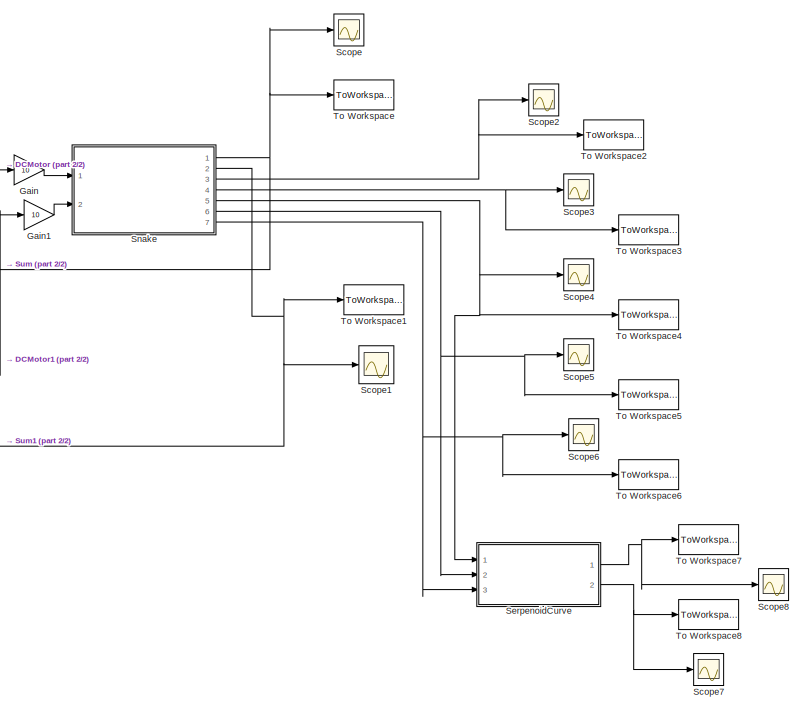
[diagram: root canvas - part 1/2, right side, full height]
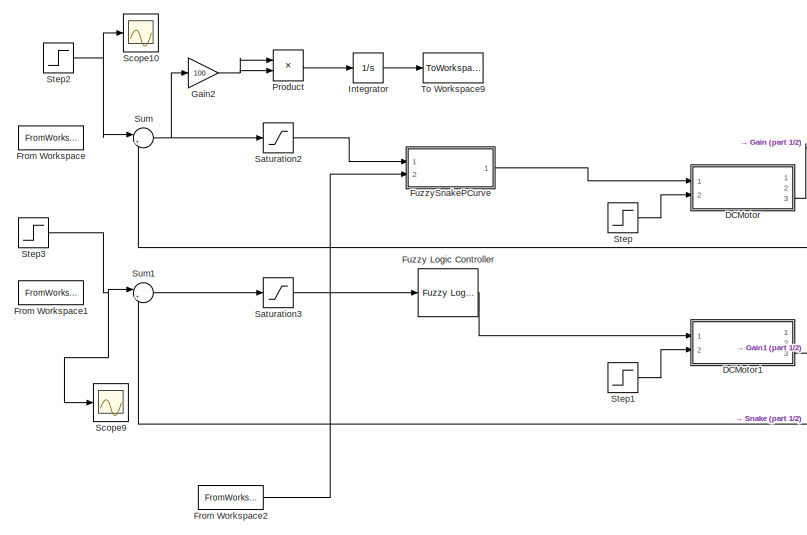
[diagram: root canvas - part 2/2, middle left region]
MODEL slx_288eced03c60
KIND model
CONFIG AbsTol = auto
CONFIG FixedStep = tpaso
CONFIG MaxStep = auto
CONFIG MinStep = auto
CONFIG RelTol = 1e-3
CONFIG SampleTimeConstraint = Unconstrained
CONFIG Solver = FixedStepAuto
CONFIG SolverMode = Auto
CONFIG SolverName = FixedStepAuto
CONFIG StartTime = 0
CONFIG StopTime = tmax
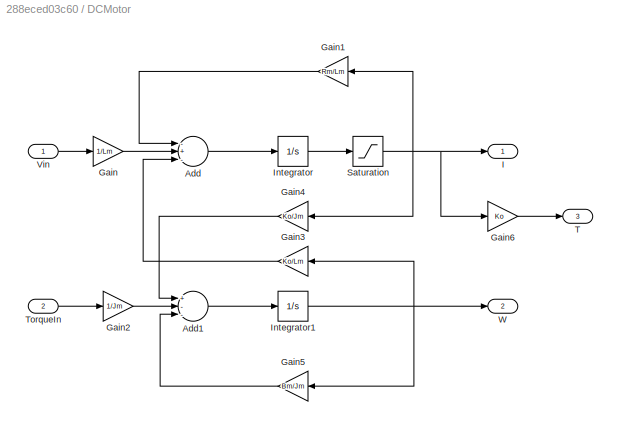
BLOCK [SubSystem] DCMotor
  Ports = [2, 3]
  RequestExecContextInheritance = off
  Variant = off
BLOCK [Sum] DCMotor/Add
  InputSameDT = off
  Inputs = -+-
  OutDataTypeStr = Inherit: Inherit via internal rule
  Ports = [3, 1]
  SaturateOnIntegerOverflow = off
BLOCK [Sum] DCMotor/Add1
  InputSameDT = off
  Inputs = +--
  OutDataTypeStr = Inherit: Inherit via internal rule
  Ports = [3, 1]
  SaturateOnIntegerOverflow = off
BLOCK [Gain] DCMotor/Gain
  Gain = 1/Lm
  OutDataTypeStr = Inherit: Inherit via internal rule
  ParamDataTypeStr = Inherit: Inherit via internal rule
  SaturateOnIntegerOverflow = off
BLOCK [Gain] DCMotor/Gain1
  Gain = Rm/Lm
  OutDataTypeStr = Inherit: Inherit via internal rule
  ParamDataTypeStr = Inherit: Inherit via internal rule
  SaturateOnIntegerOverflow = off
BLOCK [Gain] DCMotor/Gain2
  Gain = 1/Jm
  OutDataTypeStr = Inherit: Inherit via internal rule
  ParamDataTypeStr = Inherit: Inherit via internal rule
  SaturateOnIntegerOverflow = off
BLOCK [Gain] DCMotor/Gain3
  Gain = Ko/Lm
  OutDataTypeStr = Inherit: Inherit via internal rule
  ParamDataTypeStr = Inherit: Inherit via internal rule
  SaturateOnIntegerOverflow = off
BLOCK [Gain] DCMotor/Gain4
  Gain = Ko/Jm
  OutDataTypeStr = Inherit: Inherit via internal rule
  ParamDataTypeStr = Inherit: Inherit via internal rule
  SaturateOnIntegerOverflow = off
BLOCK [Gain] DCMotor/Gain5
  Gain = Bm/Jm
  OutDataTypeStr = Inherit: Inherit via internal rule
  ParamDataTypeStr = Inherit: Inherit via internal rule
  SaturateOnIntegerOverflow = off
BLOCK [Gain] DCMotor/Gain6
  Gain = Ko
  OutDataTypeStr = Inherit: Inherit via internal rule
  ParamDataTypeStr = Inherit: Inherit via internal rule
  SaturateOnIntegerOverflow = off
BLOCK [Outport] DCMotor/I
  IconDisplay = Port number
BLOCK [Integrator] DCMotor/Integrator
  Ports = [1, 1]
BLOCK [Integrator] DCMotor/Integrator1
  Ports = [1, 1]
BLOCK [Saturate] DCMotor/Saturation
  InputPortMap = u0
  LowerLimit = -3.5
  Ports = [1, 1]
  UpperLimit = 3.5
BLOCK [Outport] DCMotor/T
  IconDisplay = Port number
  Port = 3
BLOCK [Inport] DCMotor/TorqueIn
  IconDisplay = Port number
  Port = 2
BLOCK [Inport] DCMotor/Vin
  IconDisplay = Port number
BLOCK [Outport] DCMotor/W
  IconDisplay = Port number
  Port = 2
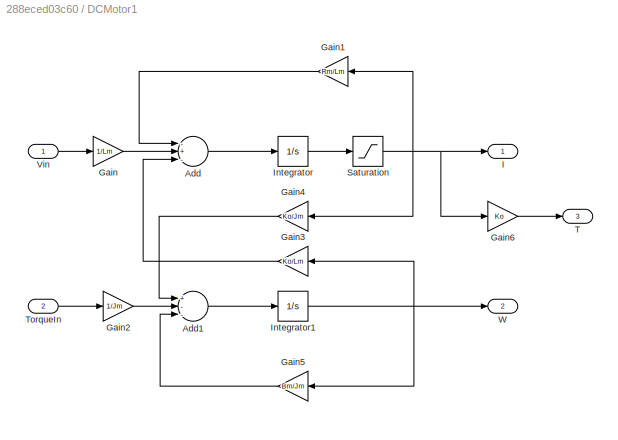
BLOCK [SubSystem] DCMotor1
  Ports = [2, 3]
  RequestExecContextInheritance = off
  Variant = off
BLOCK [Sum] DCMotor1/Add
  InputSameDT = off
  Inputs = -+-
  OutDataTypeStr = Inherit: Inherit via internal rule
  Ports = [3, 1]
  SaturateOnIntegerOverflow = off
BLOCK [Sum] DCMotor1/Add1
  InputSameDT = off
  Inputs = +--
  OutDataTypeStr = Inherit: Inherit via internal rule
  Ports = [3, 1]
  SaturateOnIntegerOverflow = off
BLOCK [Gain] DCMotor1/Gain
  Gain = 1/Lm
  OutDataTypeStr = Inherit: Inherit via internal rule
  ParamDataTypeStr = Inherit: Inherit via internal rule
  SaturateOnIntegerOverflow = off
BLOCK [Gain] DCMotor1/Gain1
  Gain = Rm/Lm
  OutDataTypeStr = Inherit: Inherit via internal rule
  ParamDataTypeStr = Inherit: Inherit via internal rule
  SaturateOnIntegerOverflow = off
BLOCK [Gain] DCMotor1/Gain2
  Gain = 1/Jm
  OutDataTypeStr = Inherit: Inherit via internal rule
  ParamDataTypeStr = Inherit: Inherit via internal rule
  SaturateOnIntegerOverflow = off
BLOCK [Gain] DCMotor1/Gain3
  Gain = Ko/Lm
  OutDataTypeStr = Inherit: Inherit via internal rule
  ParamDataTypeStr = Inherit: Inherit via internal rule
  SaturateOnIntegerOverflow = off
BLOCK [Gain] DCMotor1/Gain4
  Gain = Ko/Jm
  OutDataTypeStr = Inherit: Inherit via internal rule
  ParamDataTypeStr = Inherit: Inherit via internal rule
  SaturateOnIntegerOverflow = off
BLOCK [Gain] DCMotor1/Gain5
  Gain = Bm/Jm
  OutDataTypeStr = Inherit: Inherit via internal rule
  ParamDataTypeStr = Inherit: Inherit via internal rule
  SaturateOnIntegerOverflow = off
BLOCK [Gain] DCMotor1/Gain6
  Gain = Ko
  OutDataTypeStr = Inherit: Inherit via internal rule
  ParamDataTypeStr = Inherit: Inherit via internal rule
  SaturateOnIntegerOverflow = off
BLOCK [Outport] DCMotor1/I
  IconDisplay = Port number
BLOCK [Integrator] DCMotor1/Integrator
  Ports = [1, 1]
BLOCK [Integrator] DCMotor1/Integrator1
  Ports = [1, 1]
BLOCK [Saturate] DCMotor1/Saturation
  InputPortMap = u0
  LowerLimit = -3.5
  Ports = [1, 1]
  UpperLimit = 3.5
BLOCK [Outport] DCMotor1/T
  IconDisplay = Port number
  Port = 3
BLOCK [Inport] DCMotor1/TorqueIn
  IconDisplay = Port number
  Port = 2
BLOCK [Inport] DCMotor1/Vin
  IconDisplay = Port number
BLOCK [Outport] DCMotor1/W
  IconDisplay = Port number
  Port = 2
BLOCK [FromWorkspace] From Workspace
  SampleTime = tpaso
  VariableName = [t', O1Ref']
  ZeroCross = on
BLOCK [FromWorkspace] From Workspace1
  SampleTime = tpaso
  VariableName = [t', O2Ref']
  ZeroCross = on
BLOCK [FromWorkspace] From Workspace2
  SampleTime = tpaso
  VariableName = ConCur
  ZeroCross = on
BLOCK [Reference] Fuzzy Logic Controller  REF=fuzblock/Fuzzy Logic   (lib defined in mdl_858b3b3e7478)
Controller
  Ports = [1, 1]
  SourceBlock = fuzblock/Fuzzy Logic \nController
  SourceType = FIS
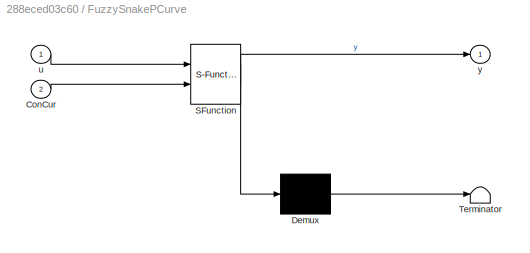
BLOCK [SubSystem] FuzzySnakePCurve
  ErrorFcn = Stateflow.Translate.translate
  PermitHierarchicalResolution = ExplicitOnly
  Ports = [2, 1]
  RequestExecContextInheritance = off
  SFBlockType = MATLAB Function
  TreatAsAtomicUnit = on
  Variant = off
BLOCK [Demux] FuzzySnakePCurve/ Demux 
  Outputs = 1
  Ports = [1, 1]
BLOCK [S-Function] FuzzySnakePCurve/ SFunction 
  EnableBusSupport = on
  FunctionName = sf_sfun
  PortCounts = [2 2]
  Ports = [2, 2]
  SFunctionDeploymentMode = off
  Tag = Stateflow S-Function SnakeRobotPMatlab_1_2_PairedWithFuzzy_2 2
BLOCK [Terminator] FuzzySnakePCurve/ Terminator 
BLOCK [Inport] FuzzySnakePCurve/ConCur
  IconDisplay = Port number
  Port = 2
BLOCK [Inport] FuzzySnakePCurve/u
  IconDisplay = Port number
BLOCK [Outport] FuzzySnakePCurve/y
  IconDisplay = Port number
BLOCK [Gain] Gain
  Gain = 10
  OutDataTypeStr = Inherit: Inherit via internal rule
  ParamDataTypeStr = Inherit: Inherit via internal rule
  SaturateOnIntegerOverflow = off
BLOCK [Gain] Gain1
  Gain = 10
  OutDataTypeStr = Inherit: Inherit via internal rule
  ParamDataTypeStr = Inherit: Inherit via internal rule
  SaturateOnIntegerOverflow = off
BLOCK [Gain] Gain2
  Gain = 100
  OutDataTypeStr = Inherit: Inherit via internal rule
  ParamDataTypeStr = Inherit: Inherit via internal rule
  SaturateOnIntegerOverflow = off
BLOCK [Integrator] Integrator
  Ports = [1, 1]
BLOCK [Product] Product
  InputSameDT = off
  OutDataTypeStr = Inherit: Inherit via internal rule
  Ports = [2, 1]
  RndMeth = Floor
  SaturateOnIntegerOverflow = off
BLOCK [Saturate] Saturation2
  InputPortMap = u0
  LowerLimit = -0.1
  Ports = [1, 1]
  UpperLimit = 0.1
BLOCK [Saturate] Saturation3
  InputPortMap = u0
  LowerLimit = -0.1
  Ports = [1, 1]
  UpperLimit = 0.1
BLOCK [Scope] Scope
  Ports = [1]
  ScopeSpecificationString = Simulink.scopes.TimeScopeBlockCfg('CurrentConfiguration', extmgr.ConfigurationSet(extmgr.Configuration('Core','General UI',true),extmgr.Configuration('Core','Source UI',true),extmgr.Configuration('Sources','WiredSimulink',true),extmgr.Configuration('Visuals','Time Domain',true,'SerializedDisplays',{struct('MinYLimReal','-0.10373','MaxYLimReal','0.26319','YLabelReal','','MinYLimMag','0.00000','MaxY...<+1405ch>
BLOCK [Scope] Scope1
  Ports = [1]
  ScopeSpecificationString = Simulink.scopes.TimeScopeBlockCfg('CurrentConfiguration', extmgr.ConfigurationSet(extmgr.Configuration('Core','General UI',true),extmgr.Configuration('Core','Source UI',true),extmgr.Configuration('Sources','WiredSimulink',true,'DataLoggingVariableName','ScopeData1'),extmgr.Configuration('Visuals','Time Domain',true,'SerializedDisplays',{struct('MinYLimReal','-0.02112','MaxYLimReal','0.19011','YLab...<+1395ch>
BLOCK [Scope] Scope10
  Ports = [1]
  ScopeSpecificationString = Simulink.scopes.TimeScopeBlockCfg('CurrentConfiguration', extmgr.ConfigurationSet(extmgr.Configuration('Core','General UI',true),extmgr.Configuration('Core','Source UI',true),extmgr.Configuration('Sources','WiredSimulink',true,'DataLoggingVariableName','ScopeData2'),extmgr.Configuration('Visuals','Time Domain',true,'SerializedDisplays',{struct('MinYLimReal','0.09','MaxYLimReal','0.11','YLabelReal'...<+1367ch>
BLOCK [Scope] Scope2
  Ports = [1]
  ScopeSpecificationString = Simulink.scopes.TimeScopeBlockCfg('CurrentConfiguration', extmgr.ConfigurationSet(extmgr.Configuration('Core','General UI',true),extmgr.Configuration('Core','Source UI',true),extmgr.Configuration('Sources','WiredSimulink',true,'DataLoggingVariableName','ScopeData1'),extmgr.Configuration('Visuals','Time Domain',true,'SerializedDisplays',{struct('MinYLimReal','-0.05773','MaxYLimReal','0.51957','YLab...<+1366ch>
BLOCK [Scope] Scope3
  Ports = [1]
  ScopeSpecificationString = Simulink.scopes.TimeScopeBlockCfg('CurrentConfiguration', extmgr.ConfigurationSet(extmgr.Configuration('Core','General UI',true),extmgr.Configuration('Core','Source UI',true),extmgr.Configuration('Sources','WiredSimulink',true,'DataLoggingVariableName','ScopeData2'),extmgr.Configuration('Visuals','Time Domain',true,'SerializedDisplays',{struct('MinYLimReal','-0.00069','MaxYLimReal','0.0062','YLabe...<+1393ch>
BLOCK [Scope] Scope4
  Ports = [1]
  ScopeSpecificationString = Simulink.scopes.TimeScopeBlockCfg('CurrentConfiguration', extmgr.ConfigurationSet(extmgr.Configuration('Core','General UI',true),extmgr.Configuration('Core','Source UI',true),extmgr.Configuration('Sources','WiredSimulink',true,'DataLoggingVariableName','ScopeData3'),extmgr.Configuration('Visuals','Time Domain',true,'SerializedDisplays',{struct('MinYLimReal','-0.01517','MaxYLimReal','0.13653','YLab...<+1366ch>
BLOCK [Scope] Scope5
  Ports = [1]
  ScopeSpecificationString = Simulink.scopes.TimeScopeBlockCfg('CurrentConfiguration', extmgr.ConfigurationSet(extmgr.Configuration('Core','General UI',true),extmgr.Configuration('Core','Source UI',true),extmgr.Configuration('Sources','WiredSimulink',true,'DataLoggingVariableName','ScopeData4'),extmgr.Configuration('Visuals','Time Domain',true,'SerializedDisplays',{struct('MinYLimReal','-0.02984','MaxYLimReal','0.26859','YLab...<+1399ch>
BLOCK [Scope] Scope6
  Ports = [1]
  ScopeSpecificationString = Simulink.scopes.TimeScopeBlockCfg('CurrentConfiguration', extmgr.ConfigurationSet(extmgr.Configuration('Core','General UI',true),extmgr.Configuration('Core','Source UI',true),extmgr.Configuration('Sources','WiredSimulink',true,'DataLoggingVariableName','ScopeData5'),extmgr.Configuration('Visuals','Time Domain',true,'SerializedDisplays',{struct('MinYLimReal','-0.00274','MaxYLimReal','0.02463','YLab...<+1399ch>
BLOCK [Scope] Scope7
  Ports = [1]
  ScopeSpecificationString = Simulink.scopes.TimeScopeBlockCfg('CurrentConfiguration', extmgr.ConfigurationSet(extmgr.Configuration('Core','General UI',true),extmgr.Configuration('Core','Source UI',true),extmgr.Configuration('Sources','WiredSimulink',true,'DataLoggingVariableName','ScopeData1'),extmgr.Configuration('Visuals','Time Domain',true,'SerializedDisplays',{struct('MinYLimReal','-0.00462','MaxYLimReal','0.02877','YLab...<+1375ch>
BLOCK [Scope] Scope8
  Ports = [1]
  ScopeSpecificationString = Simulink.scopes.TimeScopeBlockCfg('CurrentConfiguration', extmgr.ConfigurationSet(extmgr.Configuration('Core','General UI',true),extmgr.Configuration('Core','Source UI',true),extmgr.Configuration('Sources','WiredSimulink',true,'DataLoggingVariableName','ScopeData2'),extmgr.Configuration('Visuals','Time Domain',true,'SerializedDisplays',{struct('MinYLimReal','-0.02798','MaxYLimReal','0.25185','YLab...<+1406ch>
BLOCK [Scope] Scope9
  Ports = [1]
  ScopeSpecificationString = Simulink.scopes.TimeScopeBlockCfg('CurrentConfiguration', extmgr.ConfigurationSet(extmgr.Configuration('Core','General UI',true),extmgr.Configuration('Core','Source UI',true),extmgr.Configuration('Sources','WiredSimulink',true,'DataLoggingVariableName','ScopeData1'),extmgr.Configuration('Visuals','Time Domain',true,'SerializedDisplays',{struct('MinYLimReal','0.09','MaxYLimReal','0.11','YLabelReal'...<+1367ch>
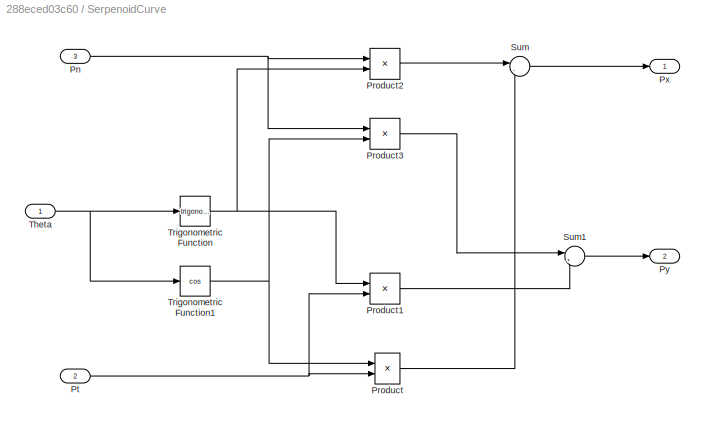
BLOCK [SubSystem] SerpenoidCurve
  Ports = [3, 2]
  RequestExecContextInheritance = off
  Variant = off
BLOCK [Inport] SerpenoidCurve/Pn
  IconDisplay = Port number
  Port = 3
BLOCK [Product] SerpenoidCurve/Product
  InputSameDT = off
  OutDataTypeStr = Inherit: Inherit via internal rule
  Ports = [2, 1]
  RndMeth = Floor
  SaturateOnIntegerOverflow = off
BLOCK [Product] SerpenoidCurve/Product1
  InputSameDT = off
  OutDataTypeStr = Inherit: Inherit via internal rule
  Ports = [2, 1]
  RndMeth = Floor
  SaturateOnIntegerOverflow = off
BLOCK [Product] SerpenoidCurve/Product2
  InputSameDT = off
  OutDataTypeStr = Inherit: Inherit via internal rule
  Ports = [2, 1]
  RndMeth = Floor
  SaturateOnIntegerOverflow = off
BLOCK [Product] SerpenoidCurve/Product3
  InputSameDT = off
  OutDataTypeStr = Inherit: Inherit via internal rule
  Ports = [2, 1]
  RndMeth = Floor
  SaturateOnIntegerOverflow = off
BLOCK [Inport] SerpenoidCurve/Pt
  IconDisplay = Port number
  Port = 2
BLOCK [Outport] SerpenoidCurve/Px
  IconDisplay = Port number
BLOCK [Outport] SerpenoidCurve/Py
  IconDisplay = Port number
  Port = 2
BLOCK [Sum] SerpenoidCurve/Sum
  IconShape = round
  InputSameDT = off
  Inputs = |-+
  OutDataTypeStr = Inherit: Inherit via internal rule
  Ports = [2, 1]
  SaturateOnIntegerOverflow = off
BLOCK [Sum] SerpenoidCurve/Sum1
  IconShape = round
  InputSameDT = off
  Inputs = |++
  OutDataTypeStr = Inherit: Inherit via internal rule
  Ports = [2, 1]
  SaturateOnIntegerOverflow = off
BLOCK [Inport] SerpenoidCurve/Theta
  IconDisplay = Port number
BLOCK [Trigonometry] SerpenoidCurve/Trigonometric Function
  Ports = [1, 1]
BLOCK [Trigonometry] SerpenoidCurve/Trigonometric Function1
  Operator = cos
  Ports = [1, 1]
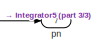
[diagram: Snake - part 1/3, top right region]
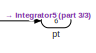
[diagram: Snake - part 2/3, top right region]
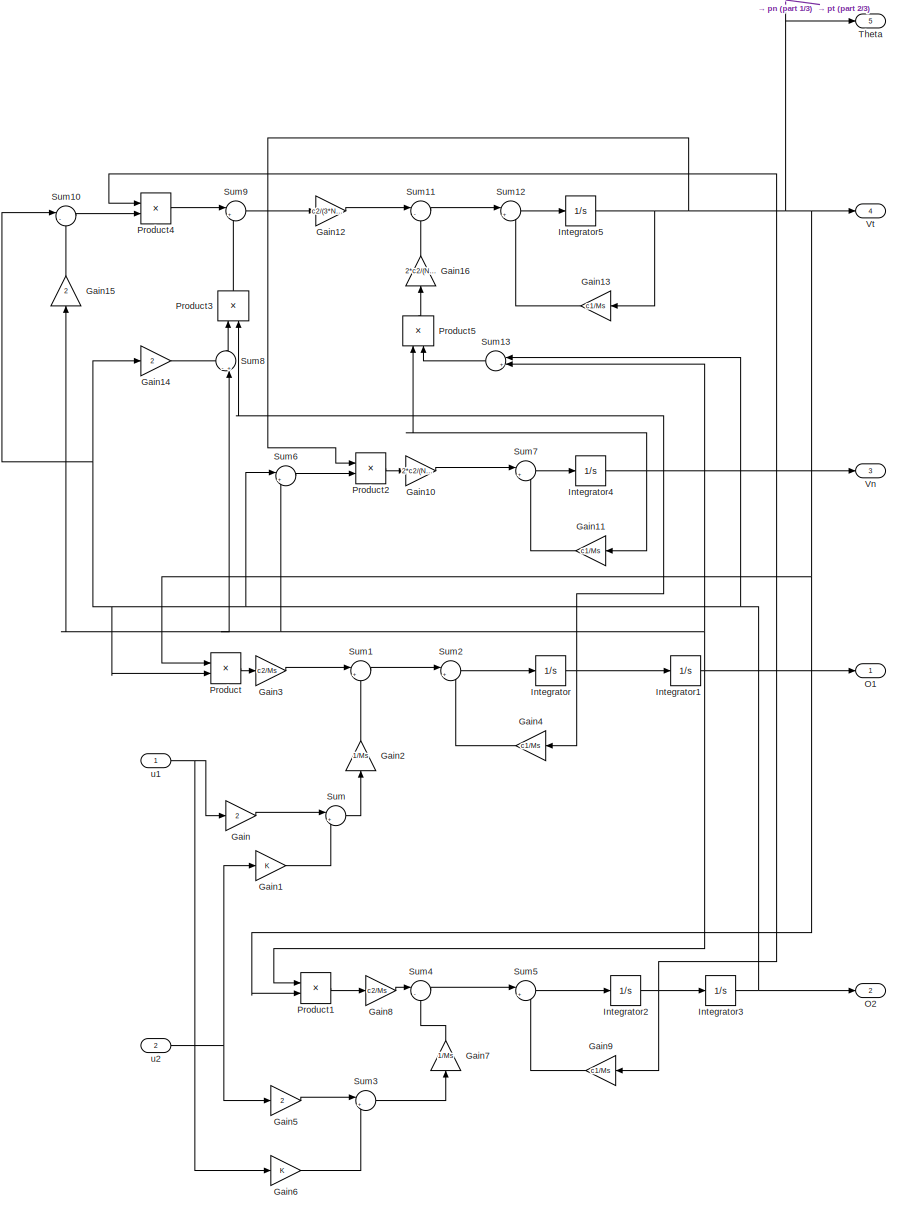
[diagram: Snake - part 3/3, most of the canvas]
BLOCK [SubSystem] Snake
  Ports = [2, 7]
  RequestExecContextInheritance = off
  Variant = off
BLOCK [Gain] Snake/Gain
  Gain = 2
  OutDataTypeStr = Inherit: Inherit via internal rule
  ParamDataTypeStr = Inherit: Inherit via internal rule
  SaturateOnIntegerOverflow = off
BLOCK [Gain] Snake/Gain1
  OutDataTypeStr = Inherit: Inherit via internal rule
  ParamDataTypeStr = Inherit: Inherit via internal rule
  SaturateOnIntegerOverflow = off
BLOCK [Gain] Snake/Gain10
  Gain = 2*c2/(N*Ms)
  OutDataTypeStr = Inherit: Inherit via internal rule
  ParamDataTypeStr = Inherit: Inherit via internal rule
  SaturateOnIntegerOverflow = off
BLOCK [Gain] Snake/Gain11
  Gain = c1/Ms
  OutDataTypeStr = Inherit: Inherit via internal rule
  ParamDataTypeStr = Inherit: Inherit via internal rule
  SaturateOnIntegerOverflow = off
BLOCK [Gain] Snake/Gain12
  Gain = c2/(3*N*Ms)
  OutDataTypeStr = Inherit: Inherit via internal rule
  ParamDataTypeStr = Inherit: Inherit via internal rule
  SaturateOnIntegerOverflow = off
BLOCK [Gain] Snake/Gain13
  Gain = c1/Ms
  OutDataTypeStr = Inherit: Inherit via internal rule
  ParamDataTypeStr = Inherit: Inherit via internal rule
  SaturateOnIntegerOverflow = off
BLOCK [Gain] Snake/Gain14
  Gain = 2
  OutDataTypeStr = Inherit: Inherit via internal rule
  ParamDataTypeStr = Inherit: Inherit via internal rule
  SaturateOnIntegerOverflow = off
BLOCK [Gain] Snake/Gain15
  Gain = 2
  OutDataTypeStr = Inherit: Inherit via internal rule
  ParamDataTypeStr = Inherit: Inherit via internal rule
  SaturateOnIntegerOverflow = off
BLOCK [Gain] Snake/Gain16
  Gain = 2*c2/(N*Ms)
  OutDataTypeStr = Inherit: Inherit via internal rule
  ParamDataTypeStr = Inherit: Inherit via internal rule
  SaturateOnIntegerOverflow = off
BLOCK [Gain] Snake/Gain2
  Gain = 1/Ms
  OutDataTypeStr = Inherit: Inherit via internal rule
  ParamDataTypeStr = Inherit: Inherit via internal rule
  SaturateOnIntegerOverflow = off
BLOCK [Gain] Snake/Gain3
  Gain = c2/Ms
  OutDataTypeStr = Inherit: Inherit via internal rule
  ParamDataTypeStr = Inherit: Inherit via internal rule
  SaturateOnIntegerOverflow = off
BLOCK [Gain] Snake/Gain4
  Gain = c1/Ms
  OutDataTypeStr = Inherit: Inherit via internal rule
  ParamDataTypeStr = Inherit: Inherit via internal rule
  SaturateOnIntegerOverflow = off
BLOCK [Gain] Snake/Gain5
  Gain = 2
  OutDataTypeStr = Inherit: Inherit via internal rule
  ParamDataTypeStr = Inherit: Inherit via internal rule
  SaturateOnIntegerOverflow = off
BLOCK [Gain] Snake/Gain6
  OutDataTypeStr = Inherit: Inherit via internal rule
  ParamDataTypeStr = Inherit: Inherit via internal rule
  SaturateOnIntegerOverflow = off
BLOCK [Gain] Snake/Gain7
  Gain = 1/Ms
  OutDataTypeStr = Inherit: Inherit via internal rule
  ParamDataTypeStr = Inherit: Inherit via internal rule
  SaturateOnIntegerOverflow = off
BLOCK [Gain] Snake/Gain8
  Gain = c2/Ms
  OutDataTypeStr = Inherit: Inherit via internal rule
  ParamDataTypeStr = Inherit: Inherit via internal rule
  SaturateOnIntegerOverflow = off
BLOCK [Gain] Snake/Gain9
  Gain = c1/Ms
  OutDataTypeStr = Inherit: Inherit via internal rule
  ParamDataTypeStr = Inherit: Inherit via internal rule
  SaturateOnIntegerOverflow = off
BLOCK [Integrator] Snake/Integrator
  Ports = [1, 1]
BLOCK [Integrator] Snake/Integrator1
  Ports = [1, 1]
BLOCK [Integrator] Snake/Integrator2
  Ports = [1, 1]
BLOCK [Integrator] Snake/Integrator3
  Ports = [1, 1]
BLOCK [Integrator] Snake/Integrator4
  Ports = [1, 1]
BLOCK [Integrator] Snake/Integrator5
  Ports = [1, 1]
BLOCK [Outport] Snake/O1
  IconDisplay = Port number
BLOCK [Outport] Snake/O2
  IconDisplay = Port number
  Port = 2
BLOCK [Product] Snake/Product
  InputSameDT = off
  OutDataTypeStr = Inherit: Inherit via internal rule
  Ports = [2, 1]
  RndMeth = Floor
  SaturateOnIntegerOverflow = off
BLOCK [Product] Snake/Product1
  InputSameDT = off
  OutDataTypeStr = Inherit: Inherit via internal rule
  Ports = [2, 1]
  RndMeth = Floor
  SaturateOnIntegerOverflow = off
BLOCK [Product] Snake/Product2
  InputSameDT = off
  OutDataTypeStr = Inherit: Inherit via internal rule
  Ports = [2, 1]
  RndMeth = Floor
  SaturateOnIntegerOverflow = off
BLOCK [Product] Snake/Product3
  InputSameDT = off
  OutDataTypeStr = Inherit: Inherit via internal rule
  Ports = [2, 1]
  RndMeth = Floor
  SaturateOnIntegerOverflow = off
BLOCK [Product] Snake/Product4
  InputSameDT = off
  OutDataTypeStr = Inherit: Inherit via internal rule
  Ports = [2, 1]
  RndMeth = Floor
  SaturateOnIntegerOverflow = off
BLOCK [Product] Snake/Product5
  InputSameDT = off
  OutDataTypeStr = Inherit: Inherit via internal rule
  Ports = [2, 1]
  RndMeth = Floor
  SaturateOnIntegerOverflow = off
BLOCK [Sum] Snake/Sum
  IconShape = round
  InputSameDT = off
  Inputs = |+-
  OutDataTypeStr = Inherit: Inherit via internal rule
  Ports = [2, 1]
  SaturateOnIntegerOverflow = off
BLOCK [Sum] Snake/Sum1
  IconShape = round
  InputSameDT = off
  Inputs = |++
  OutDataTypeStr = Inherit: Inherit via internal rule
  Ports = [2, 1]
  SaturateOnIntegerOverflow = off
BLOCK [Sum] Snake/Sum10
  IconShape = round
  InputSameDT = off
  Inputs = |-+
  OutDataTypeStr = Inherit: Inherit via internal rule
  Ports = [2, 1]
  SaturateOnIntegerOverflow = off
BLOCK [Sum] Snake/Sum11
  IconShape = round
  InputSameDT = off
  Inputs = |-+
  OutDataTypeStr = Inherit: Inherit via internal rule
  Ports = [2, 1]
  SaturateOnIntegerOverflow = off
BLOCK [Sum] Snake/Sum12
  IconShape = round
  InputSameDT = off
  Inputs = |+-
  OutDataTypeStr = Inherit: Inherit via internal rule
  Ports = [2, 1]
  SaturateOnIntegerOverflow = off
BLOCK [Sum] Snake/Sum13
  IconShape = round
  InputSameDT = off
  Inputs = |++
  OutDataTypeStr = Inherit: Inherit via internal rule
  Ports = [2, 1]
  SaturateOnIntegerOverflow = off
BLOCK [Sum] Snake/Sum2
  IconShape = round
  InputSameDT = off
  Inputs = |+-
  OutDataTypeStr = Inherit: Inherit via internal rule
  Ports = [2, 1]
  SaturateOnIntegerOverflow = off
BLOCK [Sum] Snake/Sum3
  IconShape = round
  InputSameDT = off
  Inputs = |+-
  OutDataTypeStr = Inherit: Inherit via internal rule
  Ports = [2, 1]
  SaturateOnIntegerOverflow = off
BLOCK [Sum] Snake/Sum4
  IconShape = round
  InputSameDT = off
  Inputs = |-+
  OutDataTypeStr = Inherit: Inherit via internal rule
  Ports = [2, 1]
  SaturateOnIntegerOverflow = off
BLOCK [Sum] Snake/Sum5
  IconShape = round
  InputSameDT = off
  Inputs = |+-
  OutDataTypeStr = Inherit: Inherit via internal rule
  Ports = [2, 1]
  SaturateOnIntegerOverflow = off
BLOCK [Sum] Snake/Sum6
  IconShape = round
  InputSameDT = off
  Inputs = |++
  OutDataTypeStr = Inherit: Inherit via internal rule
  Ports = [2, 1]
  SaturateOnIntegerOverflow = off
BLOCK [Sum] Snake/Sum7
  IconShape = round
  InputSameDT = off
  Inputs = |+-
  OutDataTypeStr = Inherit: Inherit via internal rule
  Ports = [2, 1]
  SaturateOnIntegerOverflow = off
BLOCK [Sum] Snake/Sum8
  IconShape = round
  InputSameDT = off
  Inputs = -+|
  OutDataTypeStr = Inherit: Inherit via internal rule
  Ports = [2, 1]
  SaturateOnIntegerOverflow = off
BLOCK [Sum] Snake/Sum9
  IconShape = round
  InputSameDT = off
  Inputs = |++
  OutDataTypeStr = Inherit: Inherit via internal rule
  Ports = [2, 1]
  SaturateOnIntegerOverflow = off
BLOCK [Outport] Snake/Theta
  IconDisplay = Port number
  Port = 5
BLOCK [Outport] Snake/Vn
  IconDisplay = Port number
  Port = 3
BLOCK [Outport] Snake/Vt
  IconDisplay = Port number
  Port = 4
BLOCK [Outport] Snake/pn 
  IconDisplay = Port number
  Port = 7
BLOCK [Outport] Snake/pt
  IconDisplay = Port number
  Port = 6
BLOCK [Inport] Snake/u1
  IconDisplay = Port number
BLOCK [Inport] Snake/u2
  IconDisplay = Port number
  Port = 2
BLOCK [Step] Step
  After = 0.0018
  SampleTime = tpaso
  Time = 0
BLOCK [Step] Step1
  After = 0.0008
  SampleTime = tpaso
  Time = 0
BLOCK [Step] Step2
  After = 0.1
  SampleTime = tpaso
  Time = 0
BLOCK [Step] Step3
  After = 0.1
  SampleTime = tpaso
  Time = 0
BLOCK [Sum] Sum
  IconShape = round
  InputSameDT = off
  Inputs = |+-
  OutDataTypeStr = Inherit: Inherit via internal rule
  Ports = [2, 1]
  SaturateOnIntegerOverflow = off
BLOCK [Sum] Sum1
  IconShape = round
  InputSameDT = off
  Inputs = |+-
  OutDataTypeStr = Inherit: Inherit via internal rule
  Ports = [2, 1]
  SaturateOnIntegerOverflow = off
BLOCK [ToWorkspace] To Workspace
  FixptAsFi = on
  MaxDataPoints = inf
  Ports = [1]
  SampleTime = -1
  Save2DSignal = 3-D array (concatenate along third dimension)
  VariableName = O1
BLOCK [ToWorkspace] To Workspace1
  FixptAsFi = on
  MaxDataPoints = inf
  Ports = [1]
  SampleTime = -1
  Save2DSignal = 3-D array (concatenate along third dimension)
  VariableName = O2
BLOCK [ToWorkspace] To Workspace2
  FixptAsFi = on
  MaxDataPoints = inf
  Ports = [1]
  SampleTime = -1
  Save2DSignal = 3-D array (concatenate along third dimension)
  VariableName = Vn
BLOCK [ToWorkspace] To Workspace3
  FixptAsFi = on
  MaxDataPoints = inf
  Ports = [1]
  SampleTime = -1
  Save2DSignal = 3-D array (concatenate along third dimension)
  VariableName = Vt
BLOCK [ToWorkspace] To Workspace4
  FixptAsFi = on
  MaxDataPoints = inf
  Ports = [1]
  SampleTime = -1
  Save2DSignal = 3-D array (concatenate along third dimension)
  VariableName = Theta
BLOCK [ToWorkspace] To Workspace5
  FixptAsFi = on
  MaxDataPoints = inf
  Ports = [1]
  SampleTime = -1
  Save2DSignal = 3-D array (concatenate along third dimension)
  VariableName = Pt
BLOCK [ToWorkspace] To Workspace6
  FixptAsFi = on
  MaxDataPoints = inf
  Ports = [1]
  SampleTime = -1
  Save2DSignal = 3-D array (concatenate along third dimension)
  VariableName = Pn
BLOCK [ToWorkspace] To Workspace7
  FixptAsFi = on
  MaxDataPoints = inf
  Ports = [1]
  SampleTime = -1
  Save2DSignal = 3-D array (concatenate along third dimension)
  VariableName = Px
BLOCK [ToWorkspace] To Workspace8
  FixptAsFi = on
  MaxDataPoints = inf
  Ports = [1]
  SampleTime = -1
  Save2DSignal = 3-D array (concatenate along third dimension)
  VariableName = Py
BLOCK [ToWorkspace] To Workspace9
  FixptAsFi = on
  MaxDataPoints = inf
  Ports = [1]
  SampleTime = -1
  Save2DSignal = 3-D array (concatenate along third dimension)
  VariableName = MSE
LINE DCMotor/Add1:1 -> DCMotor/Integrator1:1
LINE DCMotor/Add:1 -> DCMotor/Integrator:1
LINE DCMotor/Gain1:1 -> DCMotor/Add:1
LINE DCMotor/Gain2:1 -> DCMotor/Add1:2
LINE DCMotor/Gain3:1 -> DCMotor/Add:3
LINE DCMotor/Gain4:1 -> DCMotor/Add1:1
LINE DCMotor/Gain5:1 -> DCMotor/Add1:3
LINE DCMotor/Gain6:1 -> DCMotor/T:1
LINE DCMotor/Gain:1 -> DCMotor/Add:2
NET DCMotor/Integrator1:1 -> DCMotor/Gain3:1, DCMotor/Gain5:1, DCMotor/W:1
LINE DCMotor/Integrator:1 -> DCMotor/Saturation:1
NET DCMotor/Saturation:1 -> DCMotor/Gain1:1, DCMotor/Gain4:1, DCMotor/Gain6:1, DCMotor/I:1
LINE DCMotor/TorqueIn:1 -> DCMotor/Gain2:1
LINE DCMotor/Vin:1 -> DCMotor/Gain:1
LINE DCMotor1/Add1:1 -> DCMotor1/Integrator1:1
LINE DCMotor1/Add:1 -> DCMotor1/Integrator:1
LINE DCMotor1/Gain1:1 -> DCMotor1/Add:1
LINE DCMotor1/Gain2:1 -> DCMotor1/Add1:2
LINE DCMotor1/Gain3:1 -> DCMotor1/Add:3
LINE DCMotor1/Gain4:1 -> DCMotor1/Add1:1
LINE DCMotor1/Gain5:1 -> DCMotor1/Add1:3
LINE DCMotor1/Gain6:1 -> DCMotor1/T:1
LINE DCMotor1/Gain:1 -> DCMotor1/Add:2
NET DCMotor1/Integrator1:1 -> DCMotor1/Gain3:1, DCMotor1/Gain5:1, DCMotor1/W:1
LINE DCMotor1/Integrator:1 -> DCMotor1/Saturation:1
NET DCMotor1/Saturation:1 -> DCMotor1/Gain1:1, DCMotor1/Gain4:1, DCMotor1/Gain6:1, DCMotor1/I:1
LINE DCMotor1/TorqueIn:1 -> DCMotor1/Gain2:1
LINE DCMotor1/Vin:1 -> DCMotor1/Gain:1
LINE DCMotor1:3 -> Gain1:1
LINE DCMotor:3 -> Gain:1
LINE From Workspace2:1 -> FuzzySnakePCurve:2
LINE Fuzzy Logic Controller:1 -> DCMotor1:1
LINE FuzzySnakePCurve:1 -> DCMotor:1
LINE Gain1:1 -> Snake:2
NET Gain2:1 -> Product:1, Product:2
LINE Gain:1 -> Snake:1
LINE Integrator:1 -> To Workspace9:1
LINE Product:1 -> Integrator:1
LINE Saturation2:1 -> FuzzySnakePCurve:1
LINE Saturation3:1 -> Fuzzy Logic Controller:1
NET SerpenoidCurve/Pn:1 -> SerpenoidCurve/Product2:1, SerpenoidCurve/Product3:1
LINE SerpenoidCurve/Product1:1 -> SerpenoidCurve/Sum1:2
LINE SerpenoidCurve/Product2:1 -> SerpenoidCurve/Sum:1
LINE SerpenoidCurve/Product3:1 -> SerpenoidCurve/Sum1:1
LINE SerpenoidCurve/Product:1 -> SerpenoidCurve/Sum:2
NET SerpenoidCurve/Pt:1 -> SerpenoidCurve/Product1:2, SerpenoidCurve/Product:2
LINE SerpenoidCurve/Sum1:1 -> SerpenoidCurve/Py:1
LINE SerpenoidCurve/Sum:1 -> SerpenoidCurve/Px:1
NET SerpenoidCurve/Theta:1 -> SerpenoidCurve/Trigonometric Function1:1, SerpenoidCurve/Trigonometric Function:1
NET SerpenoidCurve/Trigonometric Function1:1 -> SerpenoidCurve/Product3:2, SerpenoidCurve/Product:1
NET SerpenoidCurve/Trigonometric Function:1 -> SerpenoidCurve/Product1:1, SerpenoidCurve/Product2:2
NET SerpenoidCurve:1 -> Scope8:1, To Workspace7:1
NET SerpenoidCurve:2 -> Scope7:1, To Workspace8:1
LINE Snake/Gain10:1 -> Snake/Sum7:1
LINE Snake/Gain11:1 -> Snake/Sum7:2
LINE Snake/Gain12:1 -> Snake/Sum11:1
LINE Snake/Gain13:1 -> Snake/Sum12:2
LINE Snake/Gain14:1 -> Snake/Sum8:1
LINE Snake/Gain15:1 -> Snake/Sum10:2
LINE Snake/Gain16:1 -> Snake/Sum11:2
LINE Snake/Gain1:1 -> Snake/Sum:2
LINE Snake/Gain2:1 -> Snake/Sum1:2
LINE Snake/Gain3:1 -> Snake/Sum1:1
LINE Snake/Gain4:1 -> Snake/Sum2:2
LINE Snake/Gain5:1 -> Snake/Sum3:1
LINE Snake/Gain6:1 -> Snake/Sum3:2
LINE Snake/Gain7:1 -> Snake/Sum4:2
LINE Snake/Gain8:1 -> Snake/Sum4:1
LINE Snake/Gain9:1 -> Snake/Sum5:2
LINE Snake/Gain:1 -> Snake/Sum:1
NET Snake/Integrator1:1 -> Snake/Gain15:1, Snake/O1:1, Snake/Product1:1, Snake/Sum13:2, Snake/Sum6:2, Snake/Sum8:2
NET Snake/Integrator2:1 -> Snake/Gain9:1, Snake/Integrator3:1, Snake/Product4:1
NET Snake/Integrator3:1 -> Snake/Gain14:1, Snake/O2:1, Snake/Product:2, Snake/Sum10:1, Snake/Sum13:1, Snake/Sum6:1
NET Snake/Integrator4:1 -> Snake/Gain11:1, Snake/Product5:1, Snake/Vn:1
NET Snake/Integrator5:1 -> Snake/Gain13:1, Snake/Product1:2, Snake/Product2:1, Snake/Product:1, Snake/Theta:1, Snake/Vt:1, Snake/pn :1, Snake/pt:1
NET Snake/Integrator:1 -> Snake/Gain4:1, Snake/Integrator1:1, Snake/Product3:2
LINE Snake/Product1:1 -> Snake/Gain8:1
LINE Snake/Product2:1 -> Snake/Gain10:1
LINE Snake/Product3:1 -> Snake/Sum9:2
LINE Snake/Product4:1 -> Snake/Sum9:1
LINE Snake/Product5:1 -> Snake/Gain16:1
LINE Snake/Product:1 -> Snake/Gain3:1
LINE Snake/Sum10:1 -> Snake/Product4:2
LINE Snake/Sum11:1 -> Snake/Sum12:1
LINE Snake/Sum12:1 -> Snake/Integrator5:1
LINE Snake/Sum13:1 -> Snake/Product5:2
LINE Snake/Sum1:1 -> Snake/Sum2:1
LINE Snake/Sum2:1 -> Snake/Integrator:1
LINE Snake/Sum3:1 -> Snake/Gain7:1
LINE Snake/Sum4:1 -> Snake/Sum5:1
LINE Snake/Sum5:1 -> Snake/Integrator2:1
LINE Snake/Sum6:1 -> Snake/Product2:2
LINE Snake/Sum7:1 -> Snake/Integrator4:1
LINE Snake/Sum8:1 -> Snake/Product3:1
LINE Snake/Sum9:1 -> Snake/Gain12:1
LINE Snake/Sum:1 -> Snake/Gain2:1
NET Snake/u1:1 -> Snake/Gain6:1, Snake/Gain:1
NET Snake/u2:1 -> Snake/Gain1:1, Snake/Gain5:1
NET Snake:1 -> Scope:1, Sum:2, To Workspace:1
NET Snake:2 -> Scope1:1, Sum1:2, To Workspace1:1
NET Snake:3 -> Scope2:1, To Workspace2:1
NET Snake:4 -> Scope3:1, To Workspace3:1
NET Snake:5 -> Scope4:1, SerpenoidCurve:1, To Workspace4:1
NET Snake:6 -> Scope5:1, SerpenoidCurve:2, To Workspace5:1
NET Snake:7 -> Scope6:1, SerpenoidCurve:3, To Workspace6:1
LINE Step1:1 -> DCMotor1:2
NET Step2:1 -> Scope10:1, Sum:1
NET Step3:1 -> Scope9:1, Sum1:1
LINE Step:1 -> DCMotor:2
LINE Sum1:1 -> Saturation3:1
NET Sum:1 -> Gain2:1, Saturation2:1
note: NET lines group one-source signal fan-out (src -> all destinations, sorted); 1:1 wires keep LINE
CHART FuzzySnakePCurve states=1 transitions=1
  STATE_LABEL 'eML_blk_kernel()'
  STATE_LABEL 'SCRIPT:\nfunction y = fcn(u, ConCur)\n%#codegen\npaso = 0.0001;\nuAux = floor( (u + 0.1)/ paso + 1 );\nif uAux >= 2001\n    uAux = 2000;\nend\nif uAux <= 0\n    uAux = 1;\nend\ny = ConCur(uAux);'
